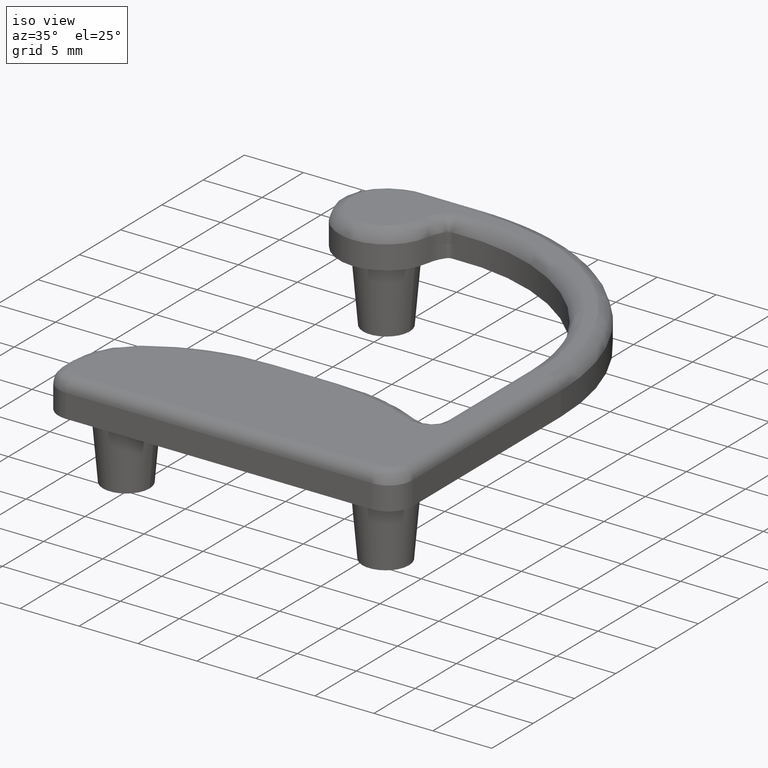
[diagram: clean part render]
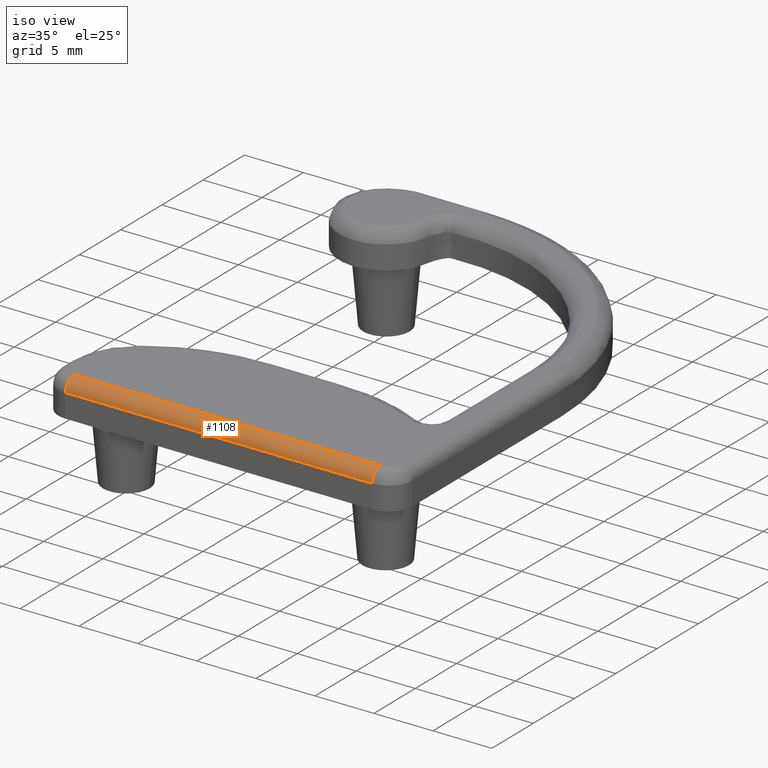
[diagram: same view with one face highlighted and labeled with its STEP entity id]
A machine part, iso view. The second image highlights one B-rep face of the part: STEP entity #1108.
In plain terms, the highlighted cylindrical surface (edge-blend (fillet) strip) has radius 1 mm, axis along (-1, 0, 0).
Its self-contained STEP definition (entity closure, byte-faithful):
#446=CARTESIAN_POINT('',(-2.000000439545005,-3.502053914127828,3.0));
#447=VERTEX_POINT('',#446);
#455=CARTESIAN_POINT('',(23.999999999999631,-3.502053914128055,3.0));
#456=VERTEX_POINT('',#455);
#457=CARTESIAN_POINT('',(-2.000000439545005,-3.502053914127941,3.0));
#458=DIRECTION('',(1.0,0.0,0.0));
#459=VECTOR('',#458,26.000000439544635);
#460=LINE('',#457,#459);
#461=EDGE_CURVE('',#447,#456,#460,.T.);
#821=CARTESIAN_POINT('',(23.999999999999602,-4.502053914128055,2.0));
#822=VERTEX_POINT('',#821);
#846=CARTESIAN_POINT('',(-2.000000439545005,-4.502053914127828,2.0));
#847=VERTEX_POINT('',#846);
#848=CARTESIAN_POINT('',(-2.000000439545033,-4.502053914127941,2.0));
#849=DIRECTION('',(1.0,0.0,0.0));
#850=VECTOR('',#849,26.000000439544635);
#851=LINE('',#848,#850);
#852=EDGE_CURVE('',#847,#822,#851,.T.);
#1079=CARTESIAN_POINT('',(-2.000000439545005,-3.502053914127941,2.0));
#1080=DIRECTION('',(-1.0,1.421085E-014,0.0));
#1081=DIRECTION('',(-1.421085E-014,-1.0,0.0));
#1082=AXIS2_PLACEMENT_3D('',#1079,#1080,#1081);
#1083=CIRCLE('',#1082,1.0);
#1084=EDGE_CURVE('',#847,#447,#1083,.T.);
#1091=CARTESIAN_POINT('',(-2.000000439545005,-3.502053914127941,2.0));
#1092=DIRECTION('',(-1.0,1.421085E-014,0.0));
#1093=DIRECTION('',(-1.421085E-014,-1.0,0.0));
#1094=AXIS2_PLACEMENT_3D('',#1091,#1092,#1093);
#1095=CYLINDRICAL_SURFACE('',#1094,1.0);
#1096=ORIENTED_EDGE('',*,*,#852,.T.);
#1097=CARTESIAN_POINT('',(23.999999999999602,-3.502053914127828,2.0));
#1098=DIRECTION('',(-1.0,0.0,0.0));
#1099=DIRECTION('',(0.0,-1.0,0.0));
#1100=AXIS2_PLACEMENT_3D('',#1097,#1098,#1099);
#1101=CIRCLE('',#1100,1.0);
#1102=EDGE_CURVE('',#822,#456,#1101,.T.);
#1103=ORIENTED_EDGE('',*,*,#1102,.T.);
#1104=ORIENTED_EDGE('',*,*,#461,.F.);
#1105=ORIENTED_EDGE('',*,*,#1084,.F.);
#1106=EDGE_LOOP('',(#1096,#1103,#1104,#1105));
#1107=FACE_OUTER_BOUND('',#1106,.T.);
#1108=ADVANCED_FACE('',(#1107),#1095,.T.);